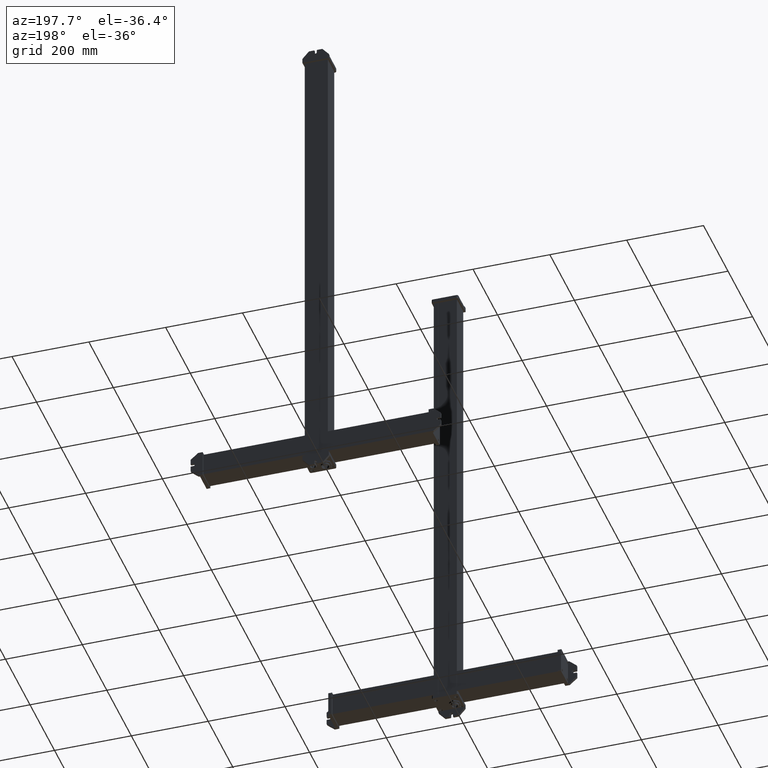
[diagram: clean part render]
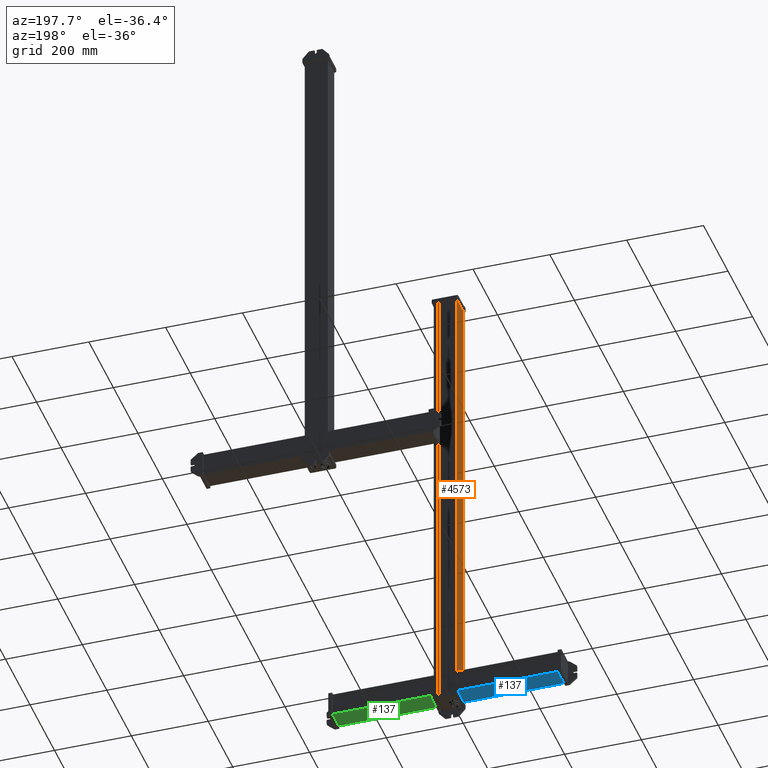
[diagram: same view with three faces highlighted in distinct colors, each labeled with its STEP entity id]
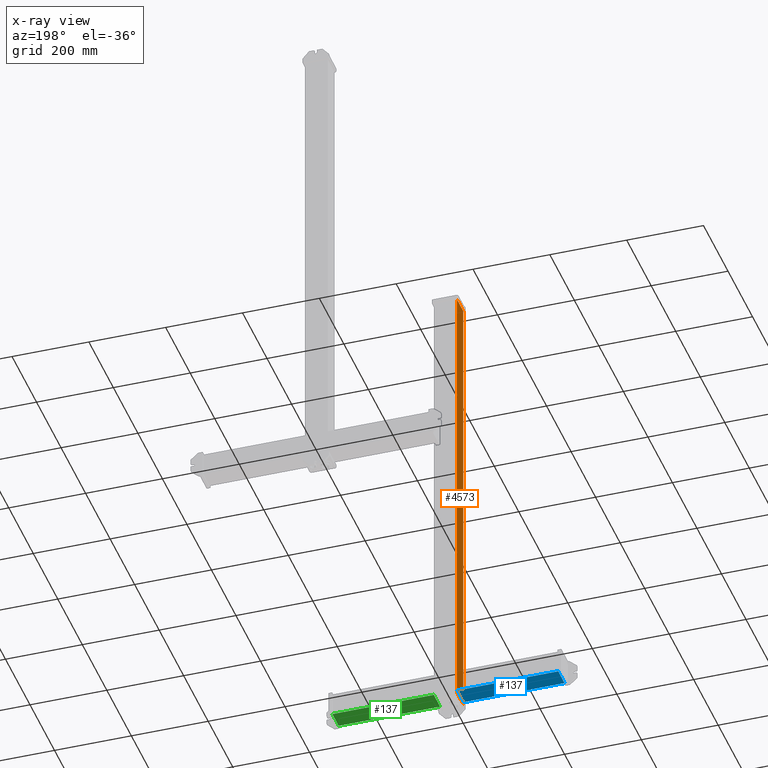
[diagram: x-ray of the same camera — body ghosted, the three highlighted faces saturated]
A machine part, auxiliary view with three faces highlighted in distinct colors.
The next image is the same camera in x-ray (body ghosted, the three faces saturated) — at least one of them is partly hidden behind the body in this view.
Their STEP definitions:

[orange] entity #4573 — the highlighted planar face has unit normal (-1, 0, 0).
#4336=CARTESIAN_POINT('Line Origine',(0.,0.,605.5)) ;
#4340=CARTESIAN_POINT('Vertex',(0.,0.,0.)) ;
#4342=CARTESIAN_POINT('Vertex',(0.,0.,1211.)) ;
#4530=CARTESIAN_POINT('Vertex',(3.5527136788E-015,52.,0.)) ;
#4533=CARTESIAN_POINT('Line Origine',(7.1054273576E-015,52.,605.5)) ;
#4537=CARTESIAN_POINT('Vertex',(3.5527136788E-015,52.,1211.)) ;
#4552=CARTESIAN_POINT('Axis2P3D Location',(0.,52.,0.)) ;
#4557=CARTESIAN_POINT('Line Origine',(0.,26.,0.)) ;
#4562=CARTESIAN_POINT('Line Origine',(0.,26.,1211.)) ;
#4337=DIRECTION('Vector Direction',(0.,0.,1.)) ;
#4534=DIRECTION('Vector Direction',(0.,0.,1.)) ;
#4553=DIRECTION('Axis2P3D Direction',(-1.,0.,0.)) ;
#4554=DIRECTION('Axis2P3D XDirection',(0.,-1.,0.)) ;
#4558=DIRECTION('Vector Direction',(0.,-1.,0.)) ;
#4563=DIRECTION('Vector Direction',(0.,-1.,0.)) ;
#4555=AXIS2_PLACEMENT_3D('Plane Axis2P3D',#4552,#4553,#4554) ;
#4568=ORIENTED_EDGE('',*,*,#4539,.F.) ;
#4569=ORIENTED_EDGE('',*,*,#4561,.T.) ;
#4570=ORIENTED_EDGE('',*,*,#4344,.T.) ;
#4571=ORIENTED_EDGE('',*,*,#4566,.F.) ;
#4338=VECTOR('Line Direction',#4337,1.) ;
#4535=VECTOR('Line Direction',#4534,1.) ;
#4559=VECTOR('Line Direction',#4558,1.) ;
#4564=VECTOR('Line Direction',#4563,1.) ;
#4573=ADVANCED_FACE('PartBody',(#4572),#4556,.T.) ;
#4344=EDGE_CURVE('',#4341,#4343,#4339,.T.) ;
#4539=EDGE_CURVE('',#4531,#4538,#4536,.T.) ;
#4561=EDGE_CURVE('',#4531,#4341,#4560,.T.) ;
#4566=EDGE_CURVE('',#4538,#4343,#4565,.T.) ;
#4567=EDGE_LOOP('',(#4568,#4569,#4570,#4571)) ;
#4572=FACE_OUTER_BOUND('',#4567,.T.) ;
#4339=LINE('Line',#4336,#4338) ;
#4536=LINE('Line',#4533,#4535) ;
#4560=LINE('Line',#4557,#4559) ;
#4565=LINE('Line',#4562,#4564) ;
#4556=PLANE('Plane',#4555) ;
#4341=VERTEX_POINT('',#4340) ;
#4343=VERTEX_POINT('',#4342) ;
#4531=VERTEX_POINT('',#4530) ;
#4538=VERTEX_POINT('',#4537) ;

[blue] entity #137 — the highlighted planar face has unit normal (-0, -0, -1).
#85=CARTESIAN_POINT('Vertex',(60.,0.,0.)) ;
#88=CARTESIAN_POINT('Line Origine',(60.,0.,132.)) ;
#92=CARTESIAN_POINT('Vertex',(60.,0.,264.)) ;
#107=CARTESIAN_POINT('Axis2P3D Location',(60.,4.1274730146E-015,0.)) ;
#112=CARTESIAN_POINT('Line Origine',(60.,26.,0.)) ;
#116=CARTESIAN_POINT('Vertex',(60.,52.,0.)) ;
#119=CARTESIAN_POINT('Line Origine',(60.,52.,132.)) ;
#123=CARTESIAN_POINT('Vertex',(60.,52.,264.)) ;
#126=CARTESIAN_POINT('Line Origine',(60.,26.,264.)) ;
#89=DIRECTION('Vector Direction',(0.,0.,1.)) ;
#108=DIRECTION('Axis2P3D Direction',(1.,0.,0.)) ;
#109=DIRECTION('Axis2P3D XDirection',(0.,1.,0.)) ;
#113=DIRECTION('Vector Direction',(0.,1.,0.)) ;
#120=DIRECTION('Vector Direction',(0.,0.,1.)) ;
#127=DIRECTION('Vector Direction',(0.,1.,0.)) ;
#110=AXIS2_PLACEMENT_3D('Plane Axis2P3D',#107,#108,#109) ;
#132=ORIENTED_EDGE('',*,*,#94,.F.) ;
#133=ORIENTED_EDGE('',*,*,#118,.T.) ;
#134=ORIENTED_EDGE('',*,*,#125,.T.) ;
#135=ORIENTED_EDGE('',*,*,#130,.F.) ;
#90=VECTOR('Line Direction',#89,1.) ;
#114=VECTOR('Line Direction',#113,1.) ;
#121=VECTOR('Line Direction',#120,1.) ;
#128=VECTOR('Line Direction',#127,1.) ;
#137=ADVANCED_FACE('PartBody',(#136),#111,.T.) ;
#94=EDGE_CURVE('',#86,#93,#91,.T.) ;
#118=EDGE_CURVE('',#86,#117,#115,.T.) ;
#125=EDGE_CURVE('',#117,#124,#122,.T.) ;
#130=EDGE_CURVE('',#93,#124,#129,.T.) ;
#131=EDGE_LOOP('',(#132,#133,#134,#135)) ;
#136=FACE_OUTER_BOUND('',#131,.T.) ;
#91=LINE('Line',#88,#90) ;
#115=LINE('Line',#112,#114) ;
#122=LINE('Line',#119,#121) ;
#129=LINE('Line',#126,#128) ;
#111=PLANE('Plane',#110) ;
#86=VERTEX_POINT('',#85) ;
#93=VERTEX_POINT('',#92) ;
#117=VERTEX_POINT('',#116) ;
#124=VERTEX_POINT('',#123) ;

[green] entity #137 — the highlighted planar face has unit normal (-0, -0, -1).
#85=CARTESIAN_POINT('Vertex',(60.,0.,0.)) ;
#88=CARTESIAN_POINT('Line Origine',(60.,0.,132.)) ;
#92=CARTESIAN_POINT('Vertex',(60.,0.,264.)) ;
#107=CARTESIAN_POINT('Axis2P3D Location',(60.,4.1274730146E-015,0.)) ;
#112=CARTESIAN_POINT('Line Origine',(60.,26.,0.)) ;
#116=CARTESIAN_POINT('Vertex',(60.,52.,0.)) ;
#119=CARTESIAN_POINT('Line Origine',(60.,52.,132.)) ;
#123=CARTESIAN_POINT('Vertex',(60.,52.,264.)) ;
#126=CARTESIAN_POINT('Line Origine',(60.,26.,264.)) ;
#89=DIRECTION('Vector Direction',(0.,0.,1.)) ;
#108=DIRECTION('Axis2P3D Direction',(1.,0.,0.)) ;
#109=DIRECTION('Axis2P3D XDirection',(0.,1.,0.)) ;
#113=DIRECTION('Vector Direction',(0.,1.,0.)) ;
#120=DIRECTION('Vector Direction',(0.,0.,1.)) ;
#127=DIRECTION('Vector Direction',(0.,1.,0.)) ;
#110=AXIS2_PLACEMENT_3D('Plane Axis2P3D',#107,#108,#109) ;
#132=ORIENTED_EDGE('',*,*,#94,.F.) ;
#133=ORIENTED_EDGE('',*,*,#118,.T.) ;
#134=ORIENTED_EDGE('',*,*,#125,.T.) ;
#135=ORIENTED_EDGE('',*,*,#130,.F.) ;
#90=VECTOR('Line Direction',#89,1.) ;
#114=VECTOR('Line Direction',#113,1.) ;
#121=VECTOR('Line Direction',#120,1.) ;
#128=VECTOR('Line Direction',#127,1.) ;
#137=ADVANCED_FACE('PartBody',(#136),#111,.T.) ;
#94=EDGE_CURVE('',#86,#93,#91,.T.) ;
#118=EDGE_CURVE('',#86,#117,#115,.T.) ;
#125=EDGE_CURVE('',#117,#124,#122,.T.) ;
#130=EDGE_CURVE('',#93,#124,#129,.T.) ;
#131=EDGE_LOOP('',(#132,#133,#134,#135)) ;
#136=FACE_OUTER_BOUND('',#131,.T.) ;
#91=LINE('Line',#88,#90) ;
#115=LINE('Line',#112,#114) ;
#122=LINE('Line',#119,#121) ;
#129=LINE('Line',#126,#128) ;
#111=PLANE('Plane',#110) ;
#86=VERTEX_POINT('',#85) ;
#93=VERTEX_POINT('',#92) ;
#117=VERTEX_POINT('',#116) ;
#124=VERTEX_POINT('',#123) ;